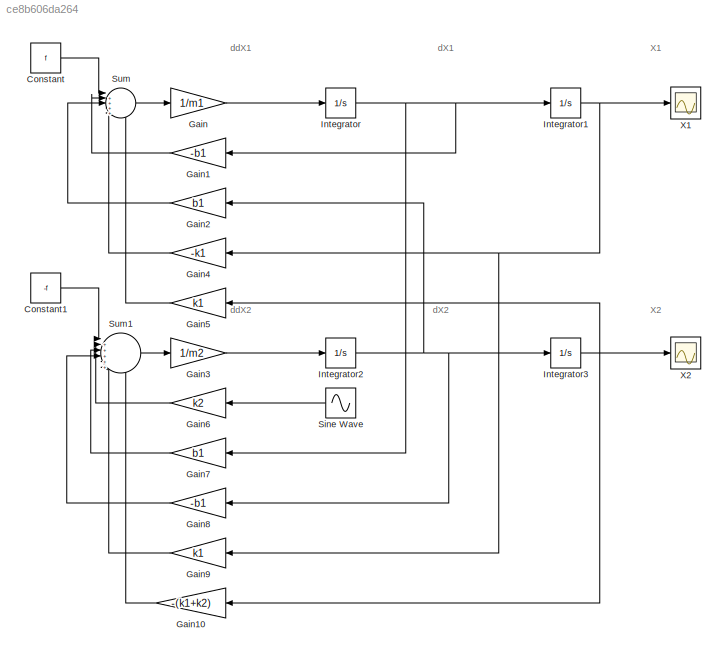
MODEL slx_ce8b606da264
KIND model
CONFIG AbsTol = auto
CONFIG EnableMultiTasking = off
CONFIG FixedStep = auto
CONFIG InitFcn = m1=290;\nb1=1000;\nm2=59;\nk1=16182;\nf=0;\nk2=19000;
CONFIG MaxStep = auto
CONFIG MinStep = auto
CONFIG RelTol = 1e-3
CONFIG SampleTimeConstraint = Unconstrained
CONFIG SolverName = VariableStepAuto
CONFIG StartTime = 0.0
CONFIG StopTime = 5
BLOCK [Constant] Constant
  Value = f
BLOCK [Constant] Constant1
  Value = -f
BLOCK [Gain] Gain
  Gain = 1/m1
BLOCK [Gain] Gain1
  Gain = -b1
  NameLocation = top
BLOCK [Gain] Gain10
  Gain = -(k1+k2)
  NameLocation = top
BLOCK [Gain] Gain2
  Gain = b1
  NameLocation = top
BLOCK [Gain] Gain3
  Gain = 1/m2
BLOCK [Gain] Gain4
  Gain = -k1
  NameLocation = top
BLOCK [Gain] Gain5
  Gain = k1
  NameLocation = top
BLOCK [Gain] Gain6
  Gain = k2
  NameLocation = top
BLOCK [Gain] Gain7
  Gain = b1
  NameLocation = top
BLOCK [Gain] Gain8
  Gain = -b1
  NameLocation = top
BLOCK [Gain] Gain9
  Gain = k1
  NameLocation = top
BLOCK [Integrator] Integrator
BLOCK [Integrator] Integrator1
BLOCK [Integrator] Integrator2
BLOCK [Integrator] Integrator3
BLOCK [Sin] Sine Wave
  Amplitude = .05
  Frequency = .5*pi
  NameLocation = top
  SampleTime = 0
BLOCK [Sum] Sum
  Inputs = |+++++
BLOCK [Sum] Sum1
  Inputs = |++++++
BLOCK [Scope] X1
  Floating = off
  NumInputPorts = 1
  ScopeSpecificationString = Simulink.scopes.TimeScopeBlockCfg('CurrentConfiguration', extmgr.ConfigurationSet(extmgr.Configuration('Core','General UI',true),extmgr.Configuration('Core','Source UI',true),extmgr.Configuration('Sources','WiredSimulink',true),extmgr.Configuration('Visuals','Time Domain',true,'SerializedDisplays',{struct('MinYLimReal','-0.06958','MaxYLimReal','0.08024','YLabelReal','','MinYLimMag','0.00000','MaxY...<+1452ch>
BLOCK [Scope] X2
  Floating = off
  NumInputPorts = 1
  ScopeSpecificationString = Simulink.scopes.TimeScopeBlockCfg('CurrentConfiguration', extmgr.ConfigurationSet(extmgr.Configuration('Core','General UI',true),extmgr.Configuration('Core','Source UI',true),extmgr.Configuration('Sources','WiredSimulink',true,'DataLoggingVariableName','ScopeData1'),extmgr.Configuration('Visuals','Time Domain',true,'SerializedDisplays',{struct('MinYLimReal','-0.0649','MaxYLimReal','0.07062','YLabe...<+1491ch>
ANNOTATION (root): X1
ANNOTATION (root): X2
ANNOTATION (root): dX1
ANNOTATION (root): dX2
ANNOTATION (root): ddX1
ANNOTATION (root): ddX2
LINE Constant1:1 -> Sum1:1
LINE Constant:1 -> Sum:1
LINE Gain10:1 -> Sum1:6
LINE Gain1:1 -> Sum:2
LINE Gain2:1 -> Sum:3
LINE Gain3:1 -> Integrator2:1
LINE Gain4:1 -> Sum:4
LINE Gain5:1 -> Sum:5
LINE Gain6:1 -> Sum1:2
LINE Gain7:1 -> Sum1:3
LINE Gain8:1 -> Sum1:4
LINE Gain9:1 -> Sum1:5
LINE Gain:1 -> Integrator:1
NET Integrator1:1 -> Gain4:1, Gain9:1, X1:1
NET Integrator2:1 -> Gain2:1, Gain8:1, Integrator3:1
NET Integrator3:1 -> Gain10:1, Gain5:1, X2:1
NET Integrator:1 -> Gain1:1, Gain7:1, Integrator1:1
LINE Sine Wave:1 -> Gain6:1
LINE Sum1:1 -> Gain3:1
LINE Sum:1 -> Gain:1
note: NET lines group one-source signal fan-out (src -> all destinations, sorted); 1:1 wires keep LINE
